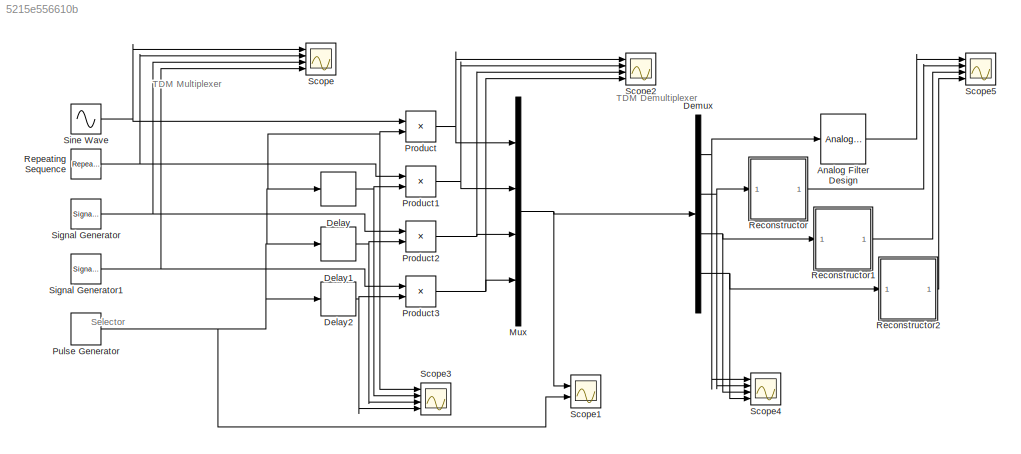
MODEL slx_5215e556610b
KIND model
CONFIG AbsTol = auto
CONFIG EnableMultiTasking = off
CONFIG FixedStep = auto
CONFIG MaxStep = auto
CONFIG MinStep = auto
CONFIG RelTol = 1e-3
CONFIG SampleTimeConstraint = Unconstrained
CONFIG Solver = VariableStepAuto
CONFIG SolverName = VariableStepAuto
CONFIG StartTime = 0.0
CONFIG StopTime = 10
BLOCK [Reference] Analog Filter Design  REF=dsparch4/Analog
Filter Design
  Ports = [1, 1]
  SourceBlock = dsparch4/Analog\nFilter Design
  SourceProductBaseCode = DS
  SourceProductName = DSP System Toolbox
  SourceType = Analog Filter Design
BLOCK [Delay] Delay
  DelayLength = 1
  InitialCondition = 0
  InputPortMap = u0
  Ports = [1, 1]
  SampleTime = 0.00025
BLOCK [Delay] Delay1
  InputPortMap = u0
  Ports = [1, 1]
  SampleTime = 0.00025
BLOCK [Delay] Delay2
  DelayLength = 3
  InputPortMap = u0
  Ports = [1, 1]
  SampleTime = 0.00025
BLOCK [Demux] Demux
  DisplayOption = bar
  Ports = [1, 4]
BLOCK [Mux] Mux
  DisplayOption = bar
  Ports = [4, 1]
BLOCK [Product] Product
  InputSameDT = off
  OutDataTypeStr = Inherit: Inherit via internal rule
  Ports = [2, 1]
  RndMeth = Floor
  SaturateOnIntegerOverflow = off
BLOCK [Product] Product1
  InputSameDT = off
  OutDataTypeStr = Inherit: Inherit via internal rule
  Ports = [2, 1]
  RndMeth = Floor
  SaturateOnIntegerOverflow = off
BLOCK [Product] Product2
  InputSameDT = off
  OutDataTypeStr = Inherit: Inherit via internal rule
  Ports = [2, 1]
  RndMeth = Floor
  SaturateOnIntegerOverflow = off
BLOCK [Product] Product3
  InputSameDT = off
  OutDataTypeStr = Inherit: Inherit via internal rule
  Ports = [2, 1]
  RndMeth = Floor
  SaturateOnIntegerOverflow = off
BLOCK [DiscretePulseGenerator] Pulse Generator
  Period = 0.001
  Ports = [0, 1]
  PulseType = Time based
  PulseWidth = 25
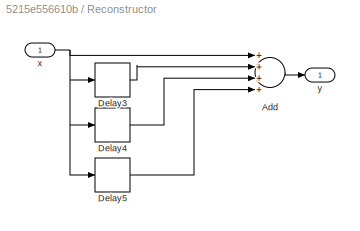
BLOCK [SubSystem] Reconstructor
  Ports = [1, 1]
  RequestExecContextInheritance = off
  Variant = off
BLOCK [Sum] Reconstructor/Add
  InputSameDT = off
  Inputs = ++++
  OutDataTypeStr = Inherit: Inherit via internal rule
  Ports = [4, 1]
  SaturateOnIntegerOverflow = off
BLOCK [Delay] Reconstructor/Delay3
  DelayLength = 1
  InitialCondition = 0
  InputPortMap = u0
  Ports = [1, 1]
  SampleTime = 0.00025
BLOCK [Delay] Reconstructor/Delay4
  InitialCondition = 0
  InputPortMap = u0
  Ports = [1, 1]
  SampleTime = 0.00025
BLOCK [Delay] Reconstructor/Delay5
  DelayLength = 3
  InitialCondition = 0
  InputPortMap = u0
  Ports = [1, 1]
  SampleTime = 0.00025
BLOCK [Inport] Reconstructor/x
  IconDisplay = Port number
BLOCK [Outport] Reconstructor/y
  IconDisplay = Port number
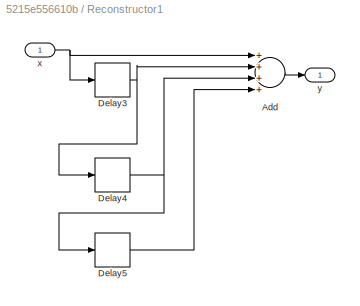
BLOCK [SubSystem] Reconstructor1
  Ports = [1, 1]
  RequestExecContextInheritance = off
  Variant = off
BLOCK [Sum] Reconstructor1/Add
  InputSameDT = off
  Inputs = ++++
  OutDataTypeStr = Inherit: Inherit via internal rule
  Ports = [4, 1]
  SaturateOnIntegerOverflow = off
BLOCK [Delay] Reconstructor1/Delay3
  DelayLength = 1
  InitialCondition = 0
  InputPortMap = u0
  Ports = [1, 1]
  SampleTime = 0.00025
BLOCK [Delay] Reconstructor1/Delay4
  DelayLength = 1
  InitialCondition = 0
  InputPortMap = u0
  Ports = [1, 1]
  SampleTime = 0.00025
BLOCK [Delay] Reconstructor1/Delay5
  DelayLength = 1
  InitialCondition = 0
  InputPortMap = u0
  Ports = [1, 1]
  SampleTime = 0.00025
BLOCK [Inport] Reconstructor1/x
  IconDisplay = Port number
BLOCK [Outport] Reconstructor1/y
  IconDisplay = Port number
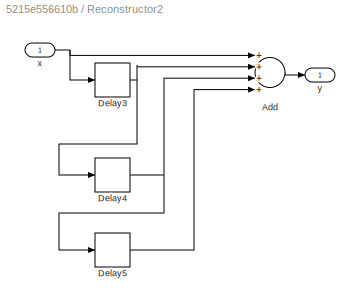
BLOCK [SubSystem] Reconstructor2
  Ports = [1, 1]
  RequestExecContextInheritance = off
  Variant = off
BLOCK [Sum] Reconstructor2/Add
  InputSameDT = off
  Inputs = ++++
  OutDataTypeStr = Inherit: Inherit via internal rule
  Ports = [4, 1]
  SaturateOnIntegerOverflow = off
BLOCK [Delay] Reconstructor2/Delay3
  DelayLength = 1
  InitialCondition = 0
  InputPortMap = u0
  Ports = [1, 1]
  SampleTime = 0.00025
BLOCK [Delay] Reconstructor2/Delay4
  DelayLength = 1
  InitialCondition = 0
  InputPortMap = u0
  Ports = [1, 1]
  SampleTime = 0.00025
BLOCK [Delay] Reconstructor2/Delay5
  DelayLength = 1
  InitialCondition = 0
  InputPortMap = u0
  Ports = [1, 1]
  SampleTime = 0.00025
BLOCK [Inport] Reconstructor2/x
  IconDisplay = Port number
BLOCK [Outport] Reconstructor2/y
  IconDisplay = Port number
BLOCK [Reference] Repeating Sequence  REF=simulink/Sources/Repeating
Sequence
  Ports = [0, 1]
  SourceBlock = simulink/Sources/Repeating\nSequence
  SourceProductBaseCode = SL
  SourceProductName = Simulink
  SourceType = Repeating table
BLOCK [Scope] Scope
  NumInputPorts = 4
  Ports = [4]
  ScopeSpecificationString = Simulink.scopes.TimeScopeBlockCfg('CurrentConfiguration', extmgr.ConfigurationSet(extmgr.Configuration('Core','General UI',true),extmgr.Configuration('Core','Source UI',true),extmgr.Configuration('Sources','WiredSimulink',true),extmgr.Configuration('Visuals','Time Domain',true,'SerializedDisplays',{struct('MinYLimReal','-1.25','MaxYLimReal','1.25','YLabelReal','','MinYLimMag','0.00000','MaxYLimMag...<+3442ch>
BLOCK [Scope] Scope1
  NumInputPorts = 2
  Ports = [2]
  ScopeSpecificationString = Simulink.scopes.TimeScopeBlockCfg('CurrentConfiguration', extmgr.ConfigurationSet(extmgr.Configuration('Core','General UI',true),extmgr.Configuration('Core','Source UI',true),extmgr.Configuration('Sources','WiredSimulink',true,'DataLoggingVariableName','ScopeData1'),extmgr.Configuration('Visuals','Time Domain',true,'TimeAxisLabels','All','SerializedDisplays',{struct('MinYLimReal','-1.37475','MaxYL...<+2626ch>
BLOCK [Scope] Scope2
  NumInputPorts = 4
  Ports = [4]
  ScopeSpecificationString = Simulink.scopes.TimeScopeBlockCfg('CurrentConfiguration', extmgr.ConfigurationSet(extmgr.Configuration('Core','General UI',true),extmgr.Configuration('Core','Source UI',true),extmgr.Configuration('Sources','WiredSimulink',true,'DataLoggingVariableName','ScopeData2'),extmgr.Configuration('Visuals','Time Domain',true,'SerializedDisplays',{struct('MinYLimReal','-1.2499','MaxYLimReal','1.2499','YLabel...<+3690ch>
BLOCK [Scope] Scope3
  NumInputPorts = 4
  Ports = [4]
  ScopeSpecificationString = Simulink.scopes.TimeScopeBlockCfg('CurrentConfiguration', extmgr.ConfigurationSet(extmgr.Configuration('Core','General UI',true),extmgr.Configuration('Core','Source UI',true),extmgr.Configuration('Sources','WiredSimulink',true,'DataLoggingVariableName','ScopeData3'),extmgr.Configuration('Visuals','Time Domain',true,'SerializedDisplays',{struct('MinYLimReal','-0.125','MaxYLimReal','1.125','YLabelRe...<+3500ch>
BLOCK [Scope] Scope4
  NumInputPorts = 4
  Ports = [4]
  ScopeSpecificationString = Simulink.scopes.TimeScopeBlockCfg('CurrentConfiguration', extmgr.ConfigurationSet(extmgr.Configuration('Core','General UI',true),extmgr.Configuration('Core','Source UI',true),extmgr.Configuration('Sources','WiredSimulink',true,'DataLoggingVariableName','ScopeData4'),extmgr.Configuration('Visuals','Time Domain',true,'SerializedDisplays',{struct('MinYLimReal','-1.2499','MaxYLimReal','1.2499','YLabel...<+3503ch>
BLOCK [Scope] Scope5
  NumInputPorts = 4
  Ports = [4]
  ScopeSpecificationString = Simulink.scopes.TimeScopeBlockCfg('CurrentConfiguration', extmgr.ConfigurationSet(extmgr.Configuration('Core','General UI',true),extmgr.Configuration('Core','Source UI',true),extmgr.Configuration('Sources','WiredSimulink',true,'DataLoggingVariableName','ScopeData5'),extmgr.Configuration('Visuals','Time Domain',true,'SerializedDisplays',{struct('MinYLimReal','-0.31299','MaxYLimReal','0.31559','YLab...<+3539ch>
BLOCK [SignalGenerator] Signal Generator
  Frequency = 10
  Ports = [0, 1]
  WaveForm = sawtooth
BLOCK [SignalGenerator] Signal Generator1
  Frequency = 10
  Ports = [0, 1]
  WaveForm = square
BLOCK [Sin] Sine Wave
  Frequency = 4*2*pi
  Ports = [0, 1]
  SampleTime = 0
ANNOTATION (root): Selector
ANNOTATION (root): TDM Demultiplexer
ANNOTATION (root): TDM Multiplexer
LINE Analog Filter Design:1 -> Scope5:1
NET Delay1:1 -> Product2:2, Scope3:3
NET Delay2:1 -> Product3:2, Scope3:4
NET Delay:1 -> Product1:2, Scope3:2
NET Demux:1 -> Analog Filter Design:1, Scope4:1
NET Demux:2 -> Reconstructor:1, Scope4:2
NET Demux:3 -> Reconstructor1:1, Scope4:3
NET Demux:4 -> Reconstructor2:1, Scope4:4
NET Mux:1 -> Demux:1, Scope1:1
NET Product1:1 -> Mux:2, Scope2:2
NET Product2:1 -> Mux:3, Scope2:3
NET Product3:1 -> Mux:4, Scope2:4
NET Product:1 -> Mux:1, Scope2:1
NET Pulse Generator:1 -> Delay1:1, Delay2:1, Delay:1, Product:2, Scope1:2, Scope3:1
LINE Reconstructor/Add:1 -> Reconstructor/y:1
LINE Reconstructor/Delay3:1 -> Reconstructor/Add:2
LINE Reconstructor/Delay4:1 -> Reconstructor/Add:3
LINE Reconstructor/Delay5:1 -> Reconstructor/Add:4
NET Reconstructor/x:1 -> Reconstructor/Add:1, Reconstructor/Delay3:1, Reconstructor/Delay4:1, Reconstructor/Delay5:1
LINE Reconstructor1/Add:1 -> Reconstructor1/y:1
NET Reconstructor1/Delay3:1 -> Reconstructor1/Add:2, Reconstructor1/Delay4:1
NET Reconstructor1/Delay4:1 -> Reconstructor1/Add:3, Reconstructor1/Delay5:1
LINE Reconstructor1/Delay5:1 -> Reconstructor1/Add:4
NET Reconstructor1/x:1 -> Reconstructor1/Add:1, Reconstructor1/Delay3:1
LINE Reconstructor1:1 -> Scope5:3
LINE Reconstructor2/Add:1 -> Reconstructor2/y:1
NET Reconstructor2/Delay3:1 -> Reconstructor2/Add:2, Reconstructor2/Delay4:1
NET Reconstructor2/Delay4:1 -> Reconstructor2/Add:3, Reconstructor2/Delay5:1
LINE Reconstructor2/Delay5:1 -> Reconstructor2/Add:4
NET Reconstructor2/x:1 -> Reconstructor2/Add:1, Reconstructor2/Delay3:1
LINE Reconstructor2:1 -> Scope5:4
LINE Reconstructor:1 -> Scope5:2
NET Repeating Sequence:1 -> Product1:1, Scope:2
NET Signal Generator1:1 -> Product3:1, Scope:4
NET Signal Generator:1 -> Product2:1, Scope:3
NET Sine Wave:1 -> Product:1, Scope:1
note: NET lines group one-source signal fan-out (src -> all destinations, sorted); 1:1 wires keep LINE
